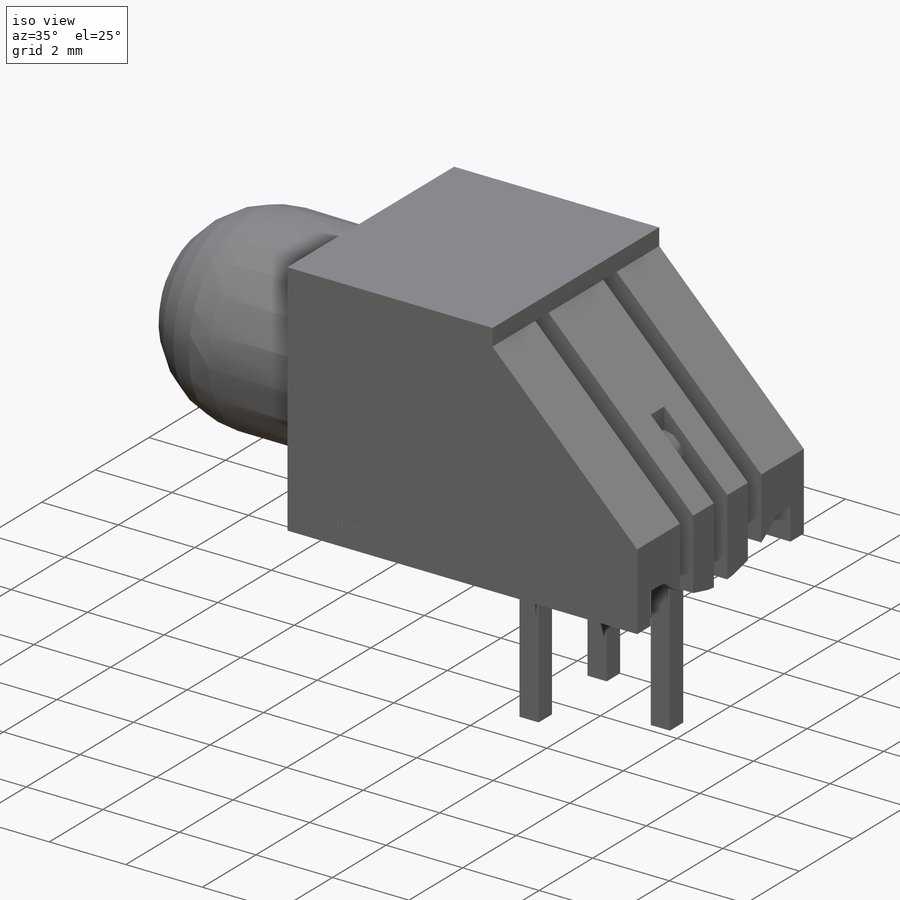
[diagram: iso view]
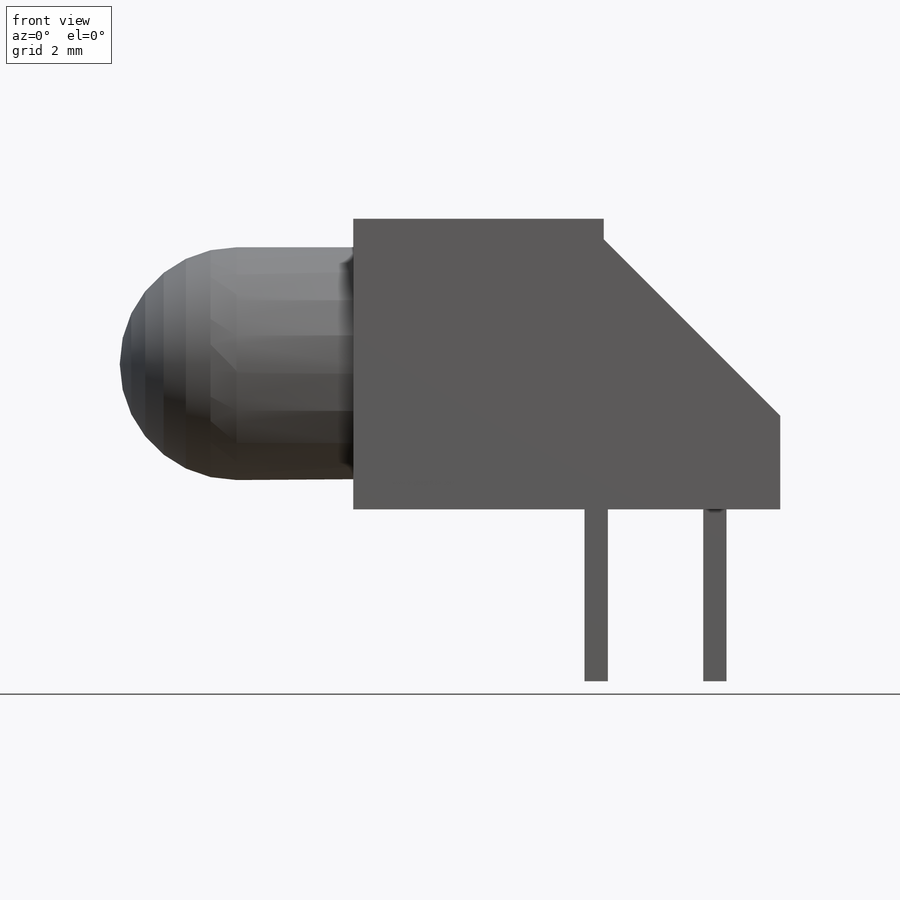
[diagram: front view]
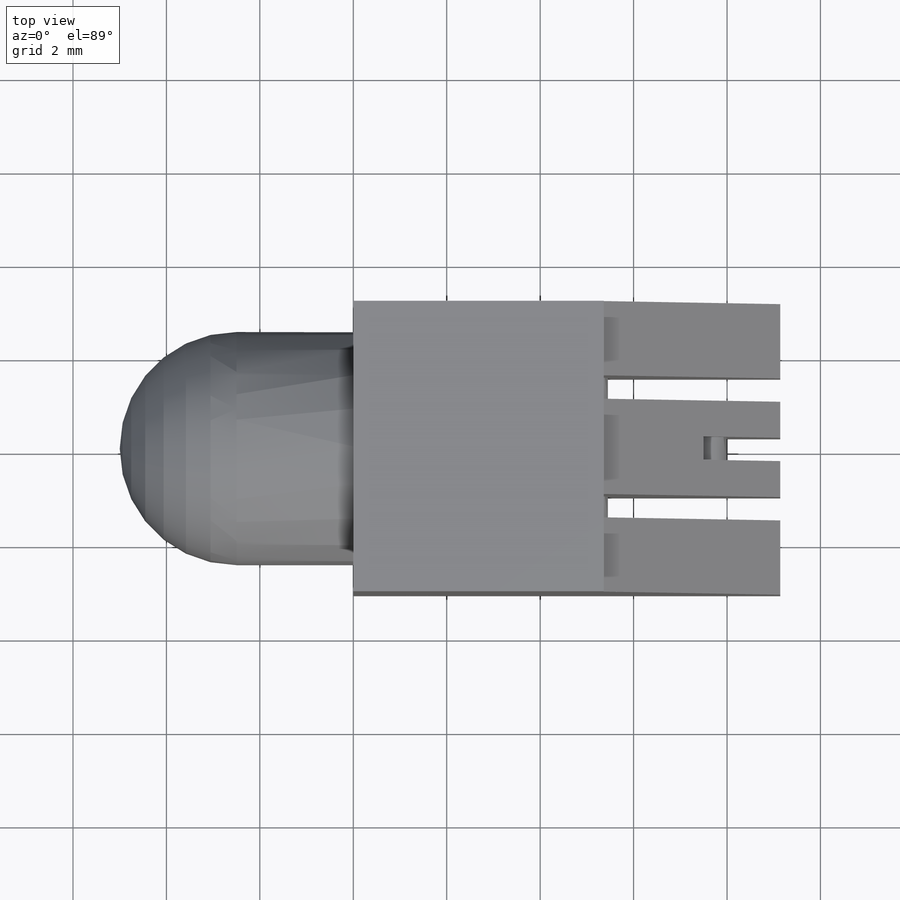
[diagram: top view]
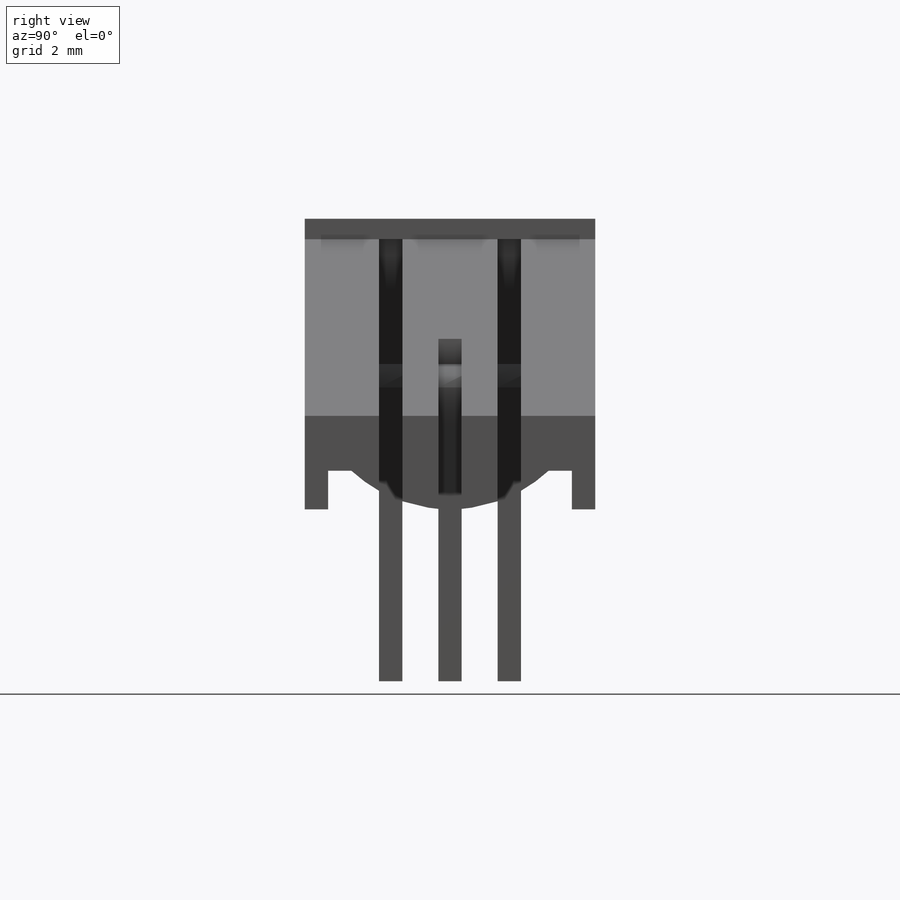
[diagram: right view]
SOLIDWORKS PART (.sldprt)
format: sldprt  version: not decoded by parser v0  size: 735,744 bytes
history: native  units: mm
features: sketch x9, extrude x4, cut_extrude x4, fillet x2, material x1, revolve x1 (+11 scaffold rows collapsed)
feature tree (32):
  scaffold x11  (default folders/planes/origin — collapsed)
  material  "Material <not specified>"
  sketch  "Sketch1"  dims[c1.D1=6.22mm c1.D2=2.0mm c1.D3=~4.795559mm c2.D3=45.0deg c2.D4=0.6mm c2.D5=9.14mm c2.D6=5.02mm c3.D4=5.36mm]
  extrude  "Extrude1"  Depth=6.22mm
  sketch  "Sketch3"  dims[c1.D2=5.0mm c1.D1=5.0mm c2.D2=2.4mm]
  revolve  "Revolve1"  Angle=360deg
  sketch  "Sketch4"  dims[c1.D1=0.5mm c1.D2=0.5mm c1.D3=0.7mm c1.D4=5.2mm c1.D5=2.54mm c2.D3=0.5mm c2.D6=0.5mm c2.D7=1.27mm c2.D8=2.54mm]
  cut_extrude  "Cut-Extrude1"  [1 undecoded]
  cut_extrude  "Cut-Extrude2"  [1 undecoded]
  sketch  "Sketch4<3>"
  extrude  "Extrude2"  [1 undecoded]
  sketch  "Sketch4<4>"
  extrude  "Extrude3"  [1 undecoded]
  sketch  "Sketch4<5>"  dims[D1=3.68mm]
  fillet  "Fillet1"  Radius=0.5mm
  sketch  "Sketch5"  dims[D1=0.5mm D2=0.5mm D3=0.5mm]
  cut_extrude  "Cut-Extrude3"  [1 undecoded]
  extrude  "Extrude4"  [1 undecoded]
  sketch  "Sketch4<7>"
  fillet  "Fillet2"  Radius=0.5mm
  sketch  "Sketch6"  dims[D1=3.0mm D2=3.0mm]
  cut_extrude  "Cut-Extrude4"  Depth=0.01mm
decode coverage: 11 of 20 modeling features carry decoded parameters
note: ~ marks probable driven/reference dimensions
note: 6 parameter values undecoded
summary: no parameter record found for 6 features
note: suppression state not decoded; provenance and decode notes live in map.json
